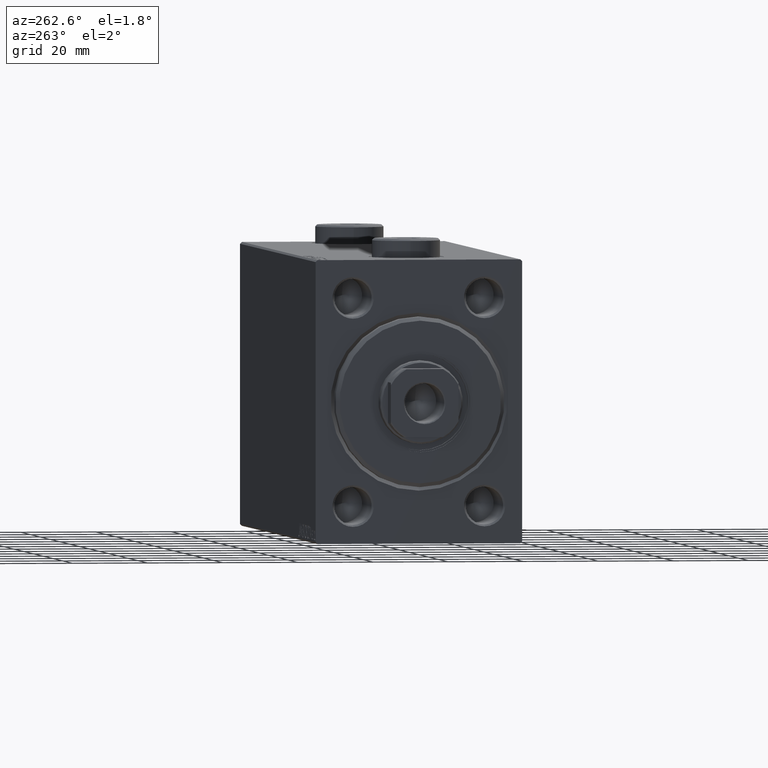
[diagram: clean part render]
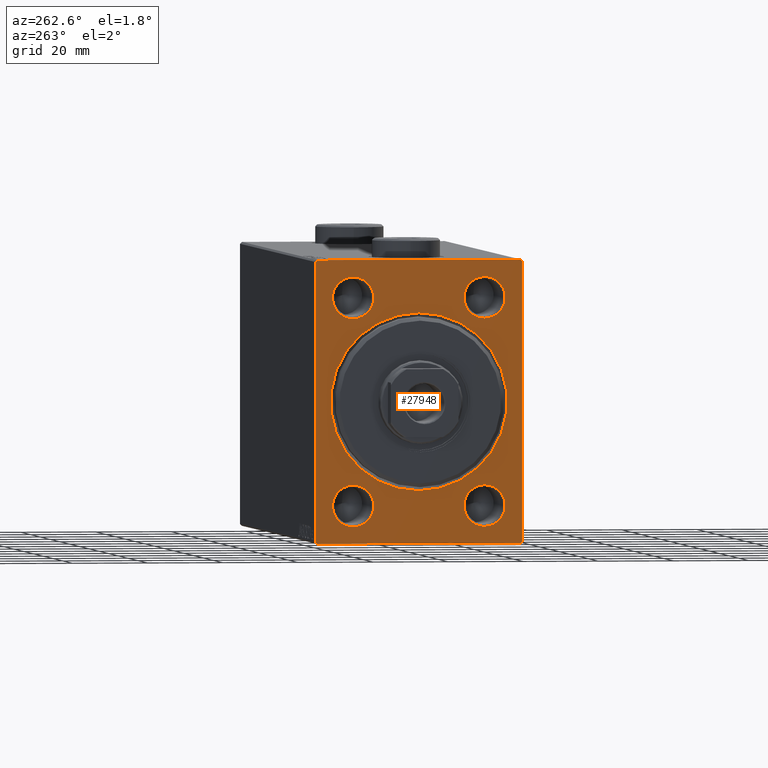
[diagram: same view with one face highlighted and labeled with its STEP entity id]
A machine part, auxiliary view. The second image highlights one B-rep face of the part: STEP entity #27948.
In plain terms, the highlighted planar face has unit normal (1, 0, 0).
Its self-contained STEP definition (entity closure, byte-faithful):
#29 = EDGE_LOOP ( 'NONE', ( #24869, #4085 ) ) ;
#721 = VERTEX_POINT ( 'NONE', #33764 ) ;
#766 = VERTEX_POINT ( 'NONE', #10002 ) ;
#831 = DIRECTION ( 'NONE',  ( 0.000000000000000000, 0.000000000000000000, -1.000000000000000000 ) ) ;
#1132 = ORIENTED_EDGE ( 'NONE', *, *, #36489, .T. ) ;
#1292 = DIRECTION ( 'NONE',  ( 1.000000000000000000, 0.000000000000000000, 0.000000000000000000 ) ) ;
#1949 = AXIS2_PLACEMENT_3D ( 'NONE', #2685, #23422, #20632 ) ;
#2514 = DIRECTION ( 'NONE',  ( 0.000000000000000000, 0.000000000000000000, -1.000000000000000000 ) ) ;
#2554 = EDGE_LOOP ( 'NONE', ( #25725, #32441 ) ) ;
#2685 = CARTESIAN_POINT ( 'NONE',  ( 0.000000000000000000, 17.50000000000000000, 27.50000000000000000 ) ) ;
#2726 = DIRECTION ( 'NONE',  ( 0.000000000000000000, 0.000000000000000000, -1.000000000000000000 ) ) ;
#2973 = EDGE_CURVE ( 'NONE', #21214, #766, #3293, .T. ) ;
#3053 = VERTEX_POINT ( 'NONE', #30151 ) ;
#3293 = CIRCLE ( 'NONE', #15792, 5.499999999999976907 ) ;
#4085 = ORIENTED_EDGE ( 'NONE', *, *, #37239, .T. ) ;
#4238 = ORIENTED_EDGE ( 'NONE', *, *, #13433, .F. ) ;
#4280 = CARTESIAN_POINT ( 'NONE',  ( 0.000000000000000000, 17.50000000000000000, -27.49999999999999645 ) ) ;
#4341 = ORIENTED_EDGE ( 'NONE', *, *, #8580, .T. ) ;
#4525 = VECTOR ( 'NONE', #16876, 1000.000000000000000 ) ;
#4571 = EDGE_CURVE ( 'NONE', #18614, #14264, #8380, .T. ) ;
#4763 = CARTESIAN_POINT ( 'NONE',  ( 0.000000000000000000, 27.50000000000000355, -37.50000000000000000 ) ) ;
#4915 = DIRECTION ( 'NONE',  ( 1.000000000000000000, 0.000000000000000000, 0.000000000000000000 ) ) ;
#4982 = VERTEX_POINT ( 'NONE', #16380 ) ;
#5219 = EDGE_CURVE ( 'NONE', #17404, #43287, #43970, .T. ) ;
#5359 = CARTESIAN_POINT ( 'NONE',  ( 0.000000000000000000, 17.50000000000000000, 27.50000000000000000 ) ) ;
#6172 = CARTESIAN_POINT ( 'NONE',  ( 0.000000000000000000, -17.50000000000000000, 27.50000000000000000 ) ) ;
#6529 = LINE ( 'NONE', #20584, #38894 ) ;
#7368 = EDGE_LOOP ( 'NONE', ( #1132, #17919 ) ) ;
#7508 = CIRCLE ( 'NONE', #31048, 23.50000000000001776 ) ;
#7559 = EDGE_CURVE ( 'NONE', #18614, #3053, #6529, .T. ) ;
#8380 = LINE ( 'NONE', #33738, #26143 ) ;
#8439 = VERTEX_POINT ( 'NONE', #25856 ) ;
#8580 = EDGE_CURVE ( 'NONE', #33948, #40501, #45190, .T. ) ;
#9413 = DIRECTION ( 'NONE',  ( 0.000000000000000000, -0.7071067811865474617, -0.7071067811865474617 ) ) ;
#9611 = CARTESIAN_POINT ( 'NONE',  ( 0.000000000000000000, -27.49999999999999645, -37.00000000000000000 ) ) ;
#9638 = DIRECTION ( 'NONE',  ( 1.000000000000000000, 0.000000000000000000, 0.000000000000000000 ) ) ;
#9715 = CIRCLE ( 'NONE', #32522, 5.499999999999976907 ) ;
#10002 = CARTESIAN_POINT ( 'NONE',  ( 0.000000000000000000, -17.50000000000000000, -32.99999999999997158 ) ) ;
#11020 = DIRECTION ( 'NONE',  ( 0.000000000000000000, 0.000000000000000000, -1.000000000000000000 ) ) ;
#11524 = DIRECTION ( 'NONE',  ( 1.000000000000000000, 0.000000000000000000, 0.000000000000000000 ) ) ;
#11709 = DIRECTION ( 'NONE',  ( 1.000000000000000000, 0.000000000000000000, 0.000000000000000000 ) ) ;
#12299 = LINE ( 'NONE', #36280, #33230 ) ;
#12558 = VECTOR ( 'NONE', #36390, 1000.000000000000000 ) ;
#12686 = DIRECTION ( 'NONE',  ( -0.000000000000000000, 0.7071067811865474617, 0.7071067811865474617 ) ) ;
#12760 = ORIENTED_EDGE ( 'NONE', *, *, #20624, .F. ) ;
#13433 = EDGE_CURVE ( 'NONE', #40992, #40501, #18868, .T. ) ;
#13636 = AXIS2_PLACEMENT_3D ( 'NONE', #5359, #19412, #33484 ) ;
#13951 = ORIENTED_EDGE ( 'NONE', *, *, #35975, .T. ) ;
#14062 = CIRCLE ( 'NONE', #31739, 5.499999999999973355 ) ;
#14264 = VERTEX_POINT ( 'NONE', #9611 ) ;
#14334 = CARTESIAN_POINT ( 'NONE',  ( 0.000000000000000000, -17.50000000000000000, 32.99999999999997868 ) ) ;
#14555 = EDGE_CURVE ( 'NONE', #42829, #43830, #33342, .T. ) ;
#14704 = CARTESIAN_POINT ( 'NONE',  ( 0.000000000000000000, -17.50000000000000000, -27.49999999999999645 ) ) ;
#15356 = ORIENTED_EDGE ( 'NONE', *, *, #14555, .F. ) ;
#15420 = FACE_BOUND ( 'NONE', #35370, .T. ) ;
#15651 = PLANE ( 'NONE',  #17979 ) ;
#15792 = AXIS2_PLACEMENT_3D ( 'NONE', #14704, #11709, #11020 ) ;
#16380 = CARTESIAN_POINT ( 'NONE',  ( 0.000000000000000000, 17.50000000000000000, 22.00000000000002132 ) ) ;
#16497 = EDGE_CURVE ( 'NONE', #42829, #3053, #33419, .T. ) ;
#16792 = CARTESIAN_POINT ( 'NONE',  ( 0.000000000000000000, 0.000000000000000000, 0.000000000000000000 ) ) ;
#16838 = VECTOR ( 'NONE', #12686, 1000.000000000000114 ) ;
#16876 = DIRECTION ( 'NONE',  ( 0.000000000000000000, 0.000000000000000000, -1.000000000000000000 ) ) ;
#16995 = VECTOR ( 'NONE', #32883, 1000.000000000000000 ) ;
#17128 = DIRECTION ( 'NONE',  ( 0.000000000000000000, 1.000000000000000000, 0.000000000000000000 ) ) ;
#17279 = CARTESIAN_POINT ( 'NONE',  ( 0.000000000000000000, 17.50000000000000000, -22.00000000000002132 ) ) ;
#17404 = VERTEX_POINT ( 'NONE', #43071 ) ;
#17677 = CARTESIAN_POINT ( 'NONE',  ( 0.000000000000000000, -26.99999999999999645, -37.50000000000000000 ) ) ;
#17919 = ORIENTED_EDGE ( 'NONE', *, *, #28007, .T. ) ;
#17979 = AXIS2_PLACEMENT_3D ( 'NONE', #29495, #40107, #29263 ) ;
#18423 = FACE_OUTER_BOUND ( 'NONE', #24991, .T. ) ;
#18514 = EDGE_CURVE ( 'NONE', #43287, #17404, #14062, .T. ) ;
#18516 = VERTEX_POINT ( 'NONE', #30836 ) ;
#18614 = VERTEX_POINT ( 'NONE', #17677 ) ;
#18868 = LINE ( 'NONE', #22331, #12558 ) ;
#18967 = DIRECTION ( 'NONE',  ( 0.000000000000000000, 0.000000000000000000, -1.000000000000000000 ) ) ;
#18972 = ORIENTED_EDGE ( 'NONE', *, *, #26362, .T. ) ;
#19061 = EDGE_CURVE ( 'NONE', #40992, #43830, #12299, .T. ) ;
#19275 = VECTOR ( 'NONE', #9413, 1000.000000000000114 ) ;
#19412 = DIRECTION ( 'NONE',  ( 1.000000000000000000, 0.000000000000000000, 0.000000000000000000 ) ) ;
#19582 = CARTESIAN_POINT ( 'NONE',  ( 0.000000000000000000, 27.50000000000000355, -37.00000000000002842 ) ) ;
#19879 = CARTESIAN_POINT ( 'NONE',  ( 0.000000000000000000, -27.49999999999999645, 37.49999999999998579 ) ) ;
#20241 = DIRECTION ( 'NONE',  ( 1.000000000000000000, 0.000000000000000000, 0.000000000000000000 ) ) ;
#20269 = CIRCLE ( 'NONE', #13636, 5.499999999999973355 ) ;
#20562 = LINE ( 'NONE', #19879, #4525 ) ;
#20584 = CARTESIAN_POINT ( 'NONE',  ( 0.000000000000000000, -27.49999999999999645, -37.50000000000000000 ) ) ;
#20624 = EDGE_CURVE ( 'NONE', #33948, #14264, #20562, .T. ) ;
#20632 = DIRECTION ( 'NONE',  ( 0.000000000000000000, 0.000000000000000000, -1.000000000000000000 ) ) ;
#21214 = VERTEX_POINT ( 'NONE', #26711 ) ;
#22214 = ORIENTED_EDGE ( 'NONE', *, *, #7559, .F. ) ;
#22331 = CARTESIAN_POINT ( 'NONE',  ( 0.000000000000000000, 27.49999999999999645, 37.50000000000000000 ) ) ;
#23363 = DIRECTION ( 'NONE',  ( -0.000000000000000000, -0.7071067811865474617, 0.7071067811865474617 ) ) ;
#23422 = DIRECTION ( 'NONE',  ( 1.000000000000000000, 0.000000000000000000, 0.000000000000000000 ) ) ;
#23724 = DIRECTION ( 'NONE',  ( 0.000000000000000000, 0.000000000000000000, -1.000000000000000000 ) ) ;
#24826 = VERTEX_POINT ( 'NONE', #40217 ) ;
#24869 = ORIENTED_EDGE ( 'NONE', *, *, #2973, .T. ) ;
#24991 = EDGE_LOOP ( 'NONE', ( #12760, #4341, #4238, #41464, #15356, #45619, #22214, #31228 ) ) ;
#25143 = DIRECTION ( 'NONE',  ( 0.000000000000000000, 0.000000000000000000, -1.000000000000000000 ) ) ;
#25365 = CIRCLE ( 'NONE', #26856, 23.50000000000001776 ) ;
#25388 = CIRCLE ( 'NONE', #1949, 5.499999999999973355 ) ;
#25725 = ORIENTED_EDGE ( 'NONE', *, *, #18514, .T. ) ;
#25817 = FACE_BOUND ( 'NONE', #29, .T. ) ;
#25856 = CARTESIAN_POINT ( 'NONE',  ( 0.000000000000000000, 17.50000000000000000, 32.99999999999997868 ) ) ;
#26069 = AXIS2_PLACEMENT_3D ( 'NONE', #30304, #26628, #29391 ) ;
#26143 = VECTOR ( 'NONE', #23363, 1000.000000000000114 ) ;
#26362 = EDGE_CURVE ( 'NONE', #43598, #18516, #41517, .T. ) ;
#26628 = DIRECTION ( 'NONE',  ( 1.000000000000000000, 0.000000000000000000, 0.000000000000000000 ) ) ;
#26711 = CARTESIAN_POINT ( 'NONE',  ( 0.000000000000000000, -17.50000000000000000, -22.00000000000002132 ) ) ;
#26856 = AXIS2_PLACEMENT_3D ( 'NONE', #16792, #9638, #23724 ) ;
#27168 = DIRECTION ( 'NONE',  ( 1.000000000000000000, 0.000000000000000000, 0.000000000000000000 ) ) ;
#27176 = CARTESIAN_POINT ( 'NONE',  ( 0.000000000000000000, 27.50000000000000355, -37.00000000000002842 ) ) ;
#27948 = ADVANCED_FACE ( 'NONE', ( #36175, #25817, #32727, #43787, #15420, #18423 ), #15651, .F. ) ;
#28007 = EDGE_CURVE ( 'NONE', #24826, #721, #25365, .T. ) ;
#28078 = ORIENTED_EDGE ( 'NONE', *, *, #29984, .T. ) ;
#29263 = DIRECTION ( 'NONE',  ( 0.000000000000000000, 0.000000000000000000, -1.000000000000000000 ) ) ;
#29391 = DIRECTION ( 'NONE',  ( 0.000000000000000000, 0.000000000000000000, -1.000000000000000000 ) ) ;
#29495 = CARTESIAN_POINT ( 'NONE',  ( 0.000000000000000000, 0.000000000000000000, 0.000000000000000000 ) ) ;
#29984 = EDGE_CURVE ( 'NONE', #8439, #4982, #20269, .T. ) ;
#30151 = CARTESIAN_POINT ( 'NONE',  ( 0.000000000000000000, 27.00000000000003197, -37.50000000000000000 ) ) ;
#30304 = CARTESIAN_POINT ( 'NONE',  ( 0.000000000000000000, 17.50000000000000000, -27.49999999999999645 ) ) ;
#30836 = CARTESIAN_POINT ( 'NONE',  ( 0.000000000000000000, 17.50000000000000000, -32.99999999999997158 ) ) ;
#30898 = CARTESIAN_POINT ( 'NONE',  ( 0.000000000000000000, -27.49999999999999645, 36.99999999999998579 ) ) ;
#31048 = AXIS2_PLACEMENT_3D ( 'NONE', #42440, #11524, #25143 ) ;
#31228 = ORIENTED_EDGE ( 'NONE', *, *, #4571, .T. ) ;
#31739 = AXIS2_PLACEMENT_3D ( 'NONE', #6172, #20241, #2726 ) ;
#32441 = ORIENTED_EDGE ( 'NONE', *, *, #5219, .T. ) ;
#32522 = AXIS2_PLACEMENT_3D ( 'NONE', #4280, #1292, #831 ) ;
#32727 = FACE_BOUND ( 'NONE', #2554, .T. ) ;
#32816 = EDGE_CURVE ( 'NONE', #4982, #8439, #25388, .T. ) ;
#32883 = DIRECTION ( 'NONE',  ( 0.000000000000000000, -9.251858538542971581E-17, 1.000000000000000000 ) ) ;
#33230 = VECTOR ( 'NONE', #40424, 1000.000000000000000 ) ;
#33239 = EDGE_LOOP ( 'NONE', ( #28078, #41944 ) ) ;
#33342 = LINE ( 'NONE', #4763, #16995 ) ;
#33419 = LINE ( 'NONE', #27176, #19275 ) ;
#33484 = DIRECTION ( 'NONE',  ( 0.000000000000000000, 0.000000000000000000, -1.000000000000000000 ) ) ;
#33523 = CARTESIAN_POINT ( 'NONE',  ( 0.000000000000000000, 26.99999999999999645, 37.50000000000000000 ) ) ;
#33738 = CARTESIAN_POINT ( 'NONE',  ( 0.000000000000000000, -26.99999999999999645, -37.50000000000000000 ) ) ;
#33764 = CARTESIAN_POINT ( 'NONE',  ( 0.000000000000000000, 0.000000000000000000, 23.50000000000001776 ) ) ;
#33948 = VERTEX_POINT ( 'NONE', #41518 ) ;
#34087 = CARTESIAN_POINT ( 'NONE',  ( 0.000000000000000000, -17.50000000000000000, 27.50000000000000000 ) ) ;
#35370 = EDGE_LOOP ( 'NONE', ( #18972, #13951 ) ) ;
#35975 = EDGE_CURVE ( 'NONE', #18516, #43598, #9715, .T. ) ;
#36175 = FACE_BOUND ( 'NONE', #7368, .T. ) ;
#36280 = CARTESIAN_POINT ( 'NONE',  ( 0.000000000000000000, 26.99999999999999645, 37.50000000000000000 ) ) ;
#36390 = DIRECTION ( 'NONE',  ( 0.000000000000000000, -1.000000000000000000, -2.523234146875355998E-16 ) ) ;
#36393 = CARTESIAN_POINT ( 'NONE',  ( 0.000000000000000000, 27.49999999999999645, 37.00000000000002842 ) ) ;
#36489 = EDGE_CURVE ( 'NONE', #721, #24826, #7508, .T. ) ;
#36973 = CIRCLE ( 'NONE', #43617, 5.499999999999976907 ) ;
#37239 = EDGE_CURVE ( 'NONE', #766, #21214, #36973, .T. ) ;
#38894 = VECTOR ( 'NONE', #17128, 1000.000000000000000 ) ;
#39038 = CARTESIAN_POINT ( 'NONE',  ( 0.000000000000000000, -17.50000000000000000, -27.49999999999999645 ) ) ;
#40107 = DIRECTION ( 'NONE',  ( 1.000000000000000000, 0.000000000000000000, 0.000000000000000000 ) ) ;
#40217 = CARTESIAN_POINT ( 'NONE',  ( 0.000000000000000000, 2.877919977996282293E-15, -23.50000000000001776 ) ) ;
#40286 = AXIS2_PLACEMENT_3D ( 'NONE', #34087, #27168, #2514 ) ;
#40424 = DIRECTION ( 'NONE',  ( -0.000000000000000000, 0.7071067811865671127, -0.7071067811865279218 ) ) ;
#40501 = VERTEX_POINT ( 'NONE', #41446 ) ;
#40992 = VERTEX_POINT ( 'NONE', #33523 ) ;
#41446 = CARTESIAN_POINT ( 'NONE',  ( 0.000000000000000000, -26.99999999999999645, 37.49999999999998579 ) ) ;
#41464 = ORIENTED_EDGE ( 'NONE', *, *, #19061, .T. ) ;
#41517 = CIRCLE ( 'NONE', #26069, 5.499999999999976907 ) ;
#41518 = CARTESIAN_POINT ( 'NONE',  ( 0.000000000000000000, -27.49999999999999645, 36.99999999999998579 ) ) ;
#41944 = ORIENTED_EDGE ( 'NONE', *, *, #32816, .T. ) ;
#42440 = CARTESIAN_POINT ( 'NONE',  ( 0.000000000000000000, 0.000000000000000000, 0.000000000000000000 ) ) ;
#42829 = VERTEX_POINT ( 'NONE', #19582 ) ;
#43071 = CARTESIAN_POINT ( 'NONE',  ( 0.000000000000000000, -17.50000000000000000, 22.00000000000002132 ) ) ;
#43287 = VERTEX_POINT ( 'NONE', #14334 ) ;
#43598 = VERTEX_POINT ( 'NONE', #17279 ) ;
#43617 = AXIS2_PLACEMENT_3D ( 'NONE', #39038, #4915, #18967 ) ;
#43787 = FACE_BOUND ( 'NONE', #33239, .T. ) ;
#43830 = VERTEX_POINT ( 'NONE', #36393 ) ;
#43970 = CIRCLE ( 'NONE', #40286, 5.499999999999973355 ) ;
#45190 = LINE ( 'NONE', #30898, #16838 ) ;
#45619 = ORIENTED_EDGE ( 'NONE', *, *, #16497, .T. ) ;